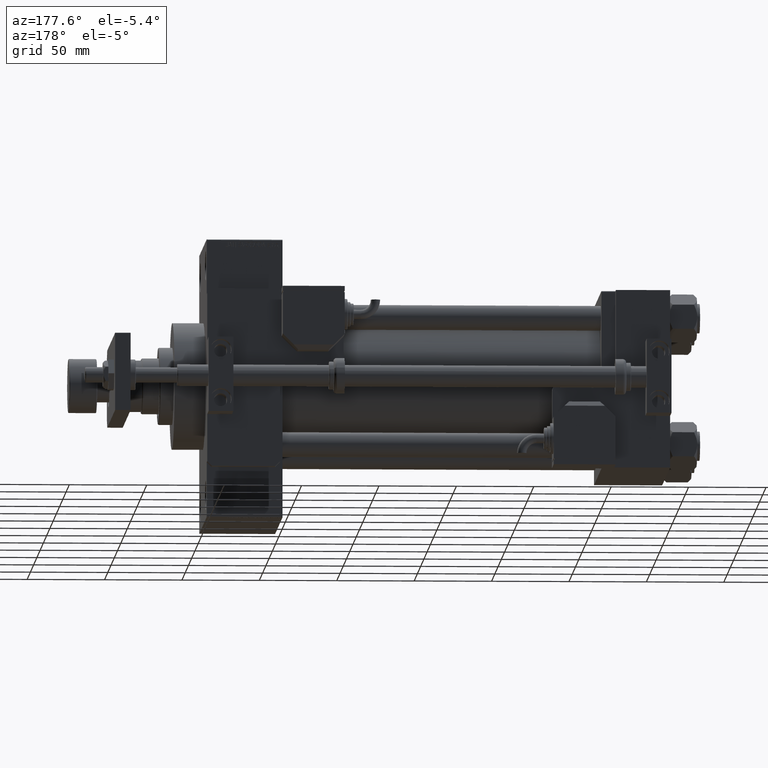
[diagram: clean part render]
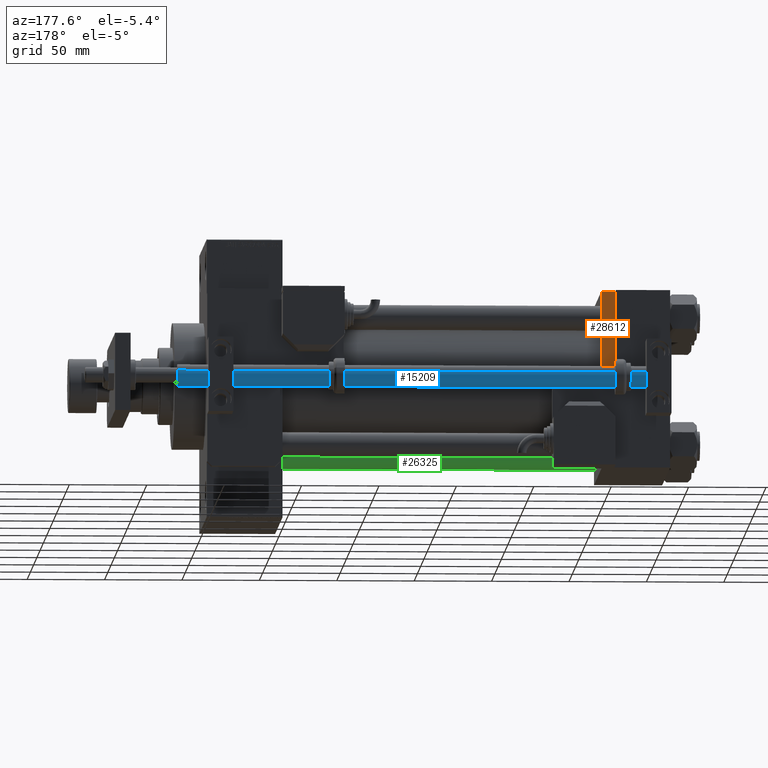
[diagram: same view with three faces highlighted in distinct colors, each labeled with its STEP entity id]
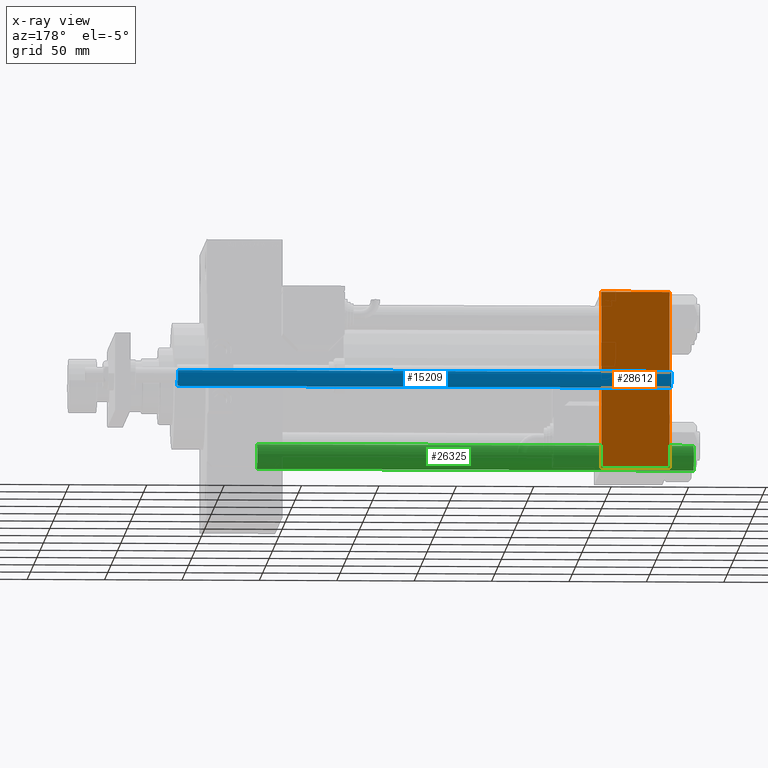
[diagram: x-ray of the same camera — body ghosted, the three highlighted faces saturated]
A machine part, auxiliary view with three faces highlighted in distinct colors.
The next image is the same camera in x-ray (body ghosted, the three faces saturated) — at least one of them is partly hidden behind the body in this view.
Their STEP definitions:

[orange] entity #28612 — the highlighted planar face has unit normal (0, 1, 0).
#805 = VERTEX_POINT ( 'NONE', #18384 ) ;
#3074 = AXIS2_PLACEMENT_3D ( 'NONE', #48876, #23558, #32523 ) ;
#3111 = LINE ( 'NONE', #44513, #52386 ) ;
#3781 = EDGE_CURVE ( 'NONE', #19319, #17093, #42157, .T. ) ;
#4854 = CARTESIAN_POINT ( 'NONE',  ( 44.00000000000000000, 57.50000000000000000, 57.00000000000004263 ) ) ;
#7753 = PLANE ( 'NONE',  #3074 ) ;
#10017 = DIRECTION ( 'NONE',  ( -1.000000000000000000, 0.000000000000000000, 0.000000000000000000 ) ) ;
#10689 = CARTESIAN_POINT ( 'NONE',  ( 44.00000000000000000, 57.50000000000000000, 57.00000000000004263 ) ) ;
#12399 = VERTEX_POINT ( 'NONE', #29472 ) ;
#13971 = VECTOR ( 'NONE', #38065, 1000.000000000000000 ) ;
#15825 = EDGE_CURVE ( 'NONE', #19319, #805, #3111, .T. ) ;
#17069 = VECTOR ( 'NONE', #29246, 1000.000000000000000 ) ;
#17093 = VERTEX_POINT ( 'NONE', #10689 ) ;
#17586 = ORIENTED_EDGE ( 'NONE', *, *, #18980, .T. ) ;
#18384 = CARTESIAN_POINT ( 'NONE',  ( 0.000000000000000000, 57.50000000000000000, -56.99999999999997158 ) ) ;
#18980 = EDGE_CURVE ( 'NONE', #12399, #805, #47041, .T. ) ;
#19319 = VERTEX_POINT ( 'NONE', #50534 ) ;
#23558 = DIRECTION ( 'NONE',  ( -0.000000000000000000, 1.000000000000000000, 0.000000000000000000 ) ) ;
#28612 = ADVANCED_FACE ( 'NONE', ( #36342 ), #7753, .T. ) ;
#29246 = DIRECTION ( 'NONE',  ( 0.000000000000000000, 0.000000000000000000, -1.000000000000000000 ) ) ;
#29472 = CARTESIAN_POINT ( 'NONE',  ( 44.00000000000000000, 57.50000000000000000, -56.99999999999997158 ) ) ;
#31454 = DIRECTION ( 'NONE',  ( 0.000000000000000000, 0.000000000000000000, -1.000000000000000000 ) ) ;
#32481 = ORIENTED_EDGE ( 'NONE', *, *, #3781, .T. ) ;
#32523 = DIRECTION ( 'NONE',  ( 0.000000000000000000, -0.000000000000000000, 1.000000000000000000 ) ) ;
#33243 = VECTOR ( 'NONE', #10017, 1000.000000000000000 ) ;
#36342 = FACE_OUTER_BOUND ( 'NONE', #45952, .T. ) ;
#36510 = ORIENTED_EDGE ( 'NONE', *, *, #15825, .F. ) ;
#37575 = EDGE_CURVE ( 'NONE', #17093, #12399, #46121, .T. ) ;
#38065 = DIRECTION ( 'NONE',  ( 1.000000000000000000, 0.000000000000000000, 0.000000000000000000 ) ) ;
#42157 = LINE ( 'NONE', #4854, #13971 ) ;
#43895 = ORIENTED_EDGE ( 'NONE', *, *, #37575, .T. ) ;
#44513 = CARTESIAN_POINT ( 'NONE',  ( 0.000000000000000000, 57.50000000000000000, 57.50000000000001421 ) ) ;
#45952 = EDGE_LOOP ( 'NONE', ( #43895, #17586, #36510, #32481 ) ) ;
#46121 = LINE ( 'NONE', #50479, #17069 ) ;
#47041 = LINE ( 'NONE', #47315, #33243 ) ;
#47315 = CARTESIAN_POINT ( 'NONE',  ( 44.00000000000000000, 57.50000000000000000, -57.00000000000000000 ) ) ;
#48876 = CARTESIAN_POINT ( 'NONE',  ( 44.00000000000000000, 57.50000000000000000, 57.50000000000001421 ) ) ;
#50479 = CARTESIAN_POINT ( 'NONE',  ( 44.00000000000000000, 57.50000000000000000, 57.50000000000001421 ) ) ;
#50534 = CARTESIAN_POINT ( 'NONE',  ( 0.000000000000000000, 57.50000000000000000, 57.00000000000004263 ) ) ;
#52386 = VECTOR ( 'NONE', #31454, 1000.000000000000000 ) ;

[blue] entity #15209 — the highlighted cylindrical surface (edge-blend (fillet) strip) has radius 7 mm, axis along (1, -0, 0).
#2787 = AXIS2_PLACEMENT_3D ( 'NONE', #16029, #26464, #7331 ) ;
#3073 = DIRECTION ( 'NONE',  ( -0.000000000000000000, -0.000000000000000000, -1.000000000000000000 ) ) ;
#3115 = CIRCLE ( 'NONE', #17025, 7.000000000000000000 ) ;
#3300 = CIRCLE ( 'NONE', #3339, 7.000000000000000000 ) ;
#3339 = AXIS2_PLACEMENT_3D ( 'NONE', #51588, #13728, #25706 ) ;
#5784 = FACE_OUTER_BOUND ( 'NONE', #32155, .T. ) ;
#7331 = DIRECTION ( 'NONE',  ( -1.000000000000000000, 0.000000000000000000, 0.000000000000000000 ) ) ;
#8699 = VECTOR ( 'NONE', #39309, 1000.000000000000000 ) ;
#9811 = DIRECTION ( 'NONE',  ( 1.000000000000000000, 0.000000000000000000, 0.000000000000000000 ) ) ;
#10089 = CARTESIAN_POINT ( 'NONE',  ( 0.000000000000000000, 0.000000000000000000, 319.0000000000000000 ) ) ;
#13728 = DIRECTION ( 'NONE',  ( -0.000000000000000000, -0.000000000000000000, 1.000000000000000000 ) ) ;
#15072 = CARTESIAN_POINT ( 'NONE',  ( 7.000000000000000000, 8.572527594031473190E-16, 319.0000000000000000 ) ) ;
#15209 = ADVANCED_FACE ( 'NONE', ( #5784 ), #36723, .T. ) ;
#15289 = ORIENTED_EDGE ( 'NONE', *, *, #37202, .F. ) ;
#15865 = LINE ( 'NONE', #15072, #46980 ) ;
#16029 = CARTESIAN_POINT ( 'NONE',  ( 0.000000000000000000, 0.000000000000000000, 319.0000000000000000 ) ) ;
#17025 = AXIS2_PLACEMENT_3D ( 'NONE', #10089, #17437, #9811 ) ;
#17437 = DIRECTION ( 'NONE',  ( 0.000000000000000000, 0.000000000000000000, 1.000000000000000000 ) ) ;
#18475 = VERTEX_POINT ( 'NONE', #41351 ) ;
#18902 = CARTESIAN_POINT ( 'NONE',  ( -7.000000000000000000, 0.000000000000000000, 319.0000000000000000 ) ) ;
#21237 = VERTEX_POINT ( 'NONE', #27187 ) ;
#24497 = ORIENTED_EDGE ( 'NONE', *, *, #52961, .T. ) ;
#25706 = DIRECTION ( 'NONE',  ( 1.000000000000000000, 0.000000000000000000, 0.000000000000000000 ) ) ;
#26464 = DIRECTION ( 'NONE',  ( -0.000000000000000000, -0.000000000000000000, -1.000000000000000000 ) ) ;
#27187 = CARTESIAN_POINT ( 'NONE',  ( -7.000000000000000000, 0.000000000000000000, 0.3000000000000779821 ) ) ;
#27330 = LINE ( 'NONE', #18902, #8699 ) ;
#32155 = EDGE_LOOP ( 'NONE', ( #15289, #24497, #43994, #53806 ) ) ;
#36723 = CYLINDRICAL_SURFACE ( 'NONE', #2787, 7.000000000000000000 ) ;
#36810 = CARTESIAN_POINT ( 'NONE',  ( 7.000000000000000000, 8.572527594031473190E-16, 319.0000000000000000 ) ) ;
#37202 = EDGE_CURVE ( 'NONE', #51636, #43694, #3115, .T. ) ;
#39309 = DIRECTION ( 'NONE',  ( -0.000000000000000000, -0.000000000000000000, -1.000000000000000000 ) ) ;
#40292 = CARTESIAN_POINT ( 'NONE',  ( -7.000000000000000000, 0.000000000000000000, 319.0000000000000000 ) ) ;
#41351 = CARTESIAN_POINT ( 'NONE',  ( 7.000000000000000000, 8.572527594031473190E-16, 0.3000000000000779821 ) ) ;
#43694 = VERTEX_POINT ( 'NONE', #40292 ) ;
#43994 = ORIENTED_EDGE ( 'NONE', *, *, #45531, .T. ) ;
#45531 = EDGE_CURVE ( 'NONE', #18475, #21237, #3300, .T. ) ;
#46980 = VECTOR ( 'NONE', #3073, 1000.000000000000000 ) ;
#48960 = EDGE_CURVE ( 'NONE', #43694, #21237, #27330, .T. ) ;
#51588 = CARTESIAN_POINT ( 'NONE',  ( 0.000000000000000000, 0.000000000000000000, 0.3000000000000779821 ) ) ;
#51636 = VERTEX_POINT ( 'NONE', #36810 ) ;
#52961 = EDGE_CURVE ( 'NONE', #51636, #18475, #15865, .T. ) ;
#53806 = ORIENTED_EDGE ( 'NONE', *, *, #48960, .F. ) ;

[green] entity #26325 — the highlighted cylindrical surface (edge-blend (fillet) strip) has radius 8 mm, axis along (1, 0, 0).
#790 = CARTESIAN_POINT ( 'NONE',  ( 0.000000000000000000, 0.000000000000000000, 0.5000000000000004441 ) ) ;
#995 = ORIENTED_EDGE ( 'NONE', *, *, #44216, .T. ) ;
#6177 = VERTEX_POINT ( 'NONE', #32395 ) ;
#9562 = VERTEX_POINT ( 'NONE', #45786 ) ;
#9654 = CIRCLE ( 'NONE', #37596, 8.000000000000000000 ) ;
#9780 = DIRECTION ( 'NONE',  ( 1.000000000000000000, 0.000000000000000000, 0.000000000000000000 ) ) ;
#10776 = LINE ( 'NONE', #18400, #14583 ) ;
#11461 = EDGE_CURVE ( 'NONE', #9562, #6177, #53180, .T. ) ;
#13654 = EDGE_CURVE ( 'NONE', #35386, #6177, #48851, .T. ) ;
#14583 = VECTOR ( 'NONE', #38812, 1000.000000000000000 ) ;
#15552 = EDGE_CURVE ( 'NONE', #9562, #47435, #9654, .T. ) ;
#15934 = EDGE_LOOP ( 'NONE', ( #52997, #42875, #995, #42313 ) ) ;
#18400 = CARTESIAN_POINT ( 'NONE',  ( -8.000000000000000000, 0.000000000000000000, 283.0000000000000000 ) ) ;
#21184 = CARTESIAN_POINT ( 'NONE',  ( -8.000000000000000000, 0.000000000000000000, 282.5000000000000000 ) ) ;
#23319 = DIRECTION ( 'NONE',  ( -1.000000000000000000, 0.000000000000000000, 0.000000000000000000 ) ) ;
#26325 = ADVANCED_FACE ( 'NONE', ( #35831 ), #39652, .T. ) ;
#27669 = DIRECTION ( 'NONE',  ( -0.000000000000000000, -0.000000000000000000, -1.000000000000000000 ) ) ;
#27894 = VECTOR ( 'NONE', #49364, 1000.000000000000000 ) ;
#29932 = DIRECTION ( 'NONE',  ( -0.000000000000000000, -0.000000000000000000, 1.000000000000000000 ) ) ;
#31443 = AXIS2_PLACEMENT_3D ( 'NONE', #790, #29932, #9780 ) ;
#32395 = CARTESIAN_POINT ( 'NONE',  ( 8.000000000000000000, 9.797174393178825657E-16, 0.5000000000000004441 ) ) ;
#35386 = VERTEX_POINT ( 'NONE', #37536 ) ;
#35831 = FACE_OUTER_BOUND ( 'NONE', #15934, .T. ) ;
#37013 = AXIS2_PLACEMENT_3D ( 'NONE', #40185, #27669, #23319 ) ;
#37450 = DIRECTION ( 'NONE',  ( 1.000000000000000000, 0.000000000000000000, 0.000000000000000000 ) ) ;
#37536 = CARTESIAN_POINT ( 'NONE',  ( -8.000000000000000000, 0.000000000000000000, 0.5000000000000004441 ) ) ;
#37596 = AXIS2_PLACEMENT_3D ( 'NONE', #41277, #45379, #37450 ) ;
#38812 = DIRECTION ( 'NONE',  ( -0.000000000000000000, -0.000000000000000000, -1.000000000000000000 ) ) ;
#39652 = CYLINDRICAL_SURFACE ( 'NONE', #37013, 8.000000000000000000 ) ;
#40185 = CARTESIAN_POINT ( 'NONE',  ( 0.000000000000000000, 0.000000000000000000, 283.0000000000000000 ) ) ;
#41277 = CARTESIAN_POINT ( 'NONE',  ( 0.000000000000000000, 0.000000000000000000, 282.5000000000000000 ) ) ;
#42313 = ORIENTED_EDGE ( 'NONE', *, *, #13654, .T. ) ;
#42875 = ORIENTED_EDGE ( 'NONE', *, *, #15552, .T. ) ;
#44216 = EDGE_CURVE ( 'NONE', #47435, #35386, #10776, .T. ) ;
#45379 = DIRECTION ( 'NONE',  ( 0.000000000000000000, 0.000000000000000000, -1.000000000000000000 ) ) ;
#45786 = CARTESIAN_POINT ( 'NONE',  ( 8.000000000000000000, 9.797174393178825657E-16, 282.5000000000000000 ) ) ;
#46077 = CARTESIAN_POINT ( 'NONE',  ( 8.000000000000000000, 9.797174393178825657E-16, 283.0000000000000000 ) ) ;
#47435 = VERTEX_POINT ( 'NONE', #21184 ) ;
#48851 = CIRCLE ( 'NONE', #31443, 8.000000000000000000 ) ;
#49364 = DIRECTION ( 'NONE',  ( -0.000000000000000000, -0.000000000000000000, -1.000000000000000000 ) ) ;
#52997 = ORIENTED_EDGE ( 'NONE', *, *, #11461, .F. ) ;
#53180 = LINE ( 'NONE', #46077, #27894 ) ;